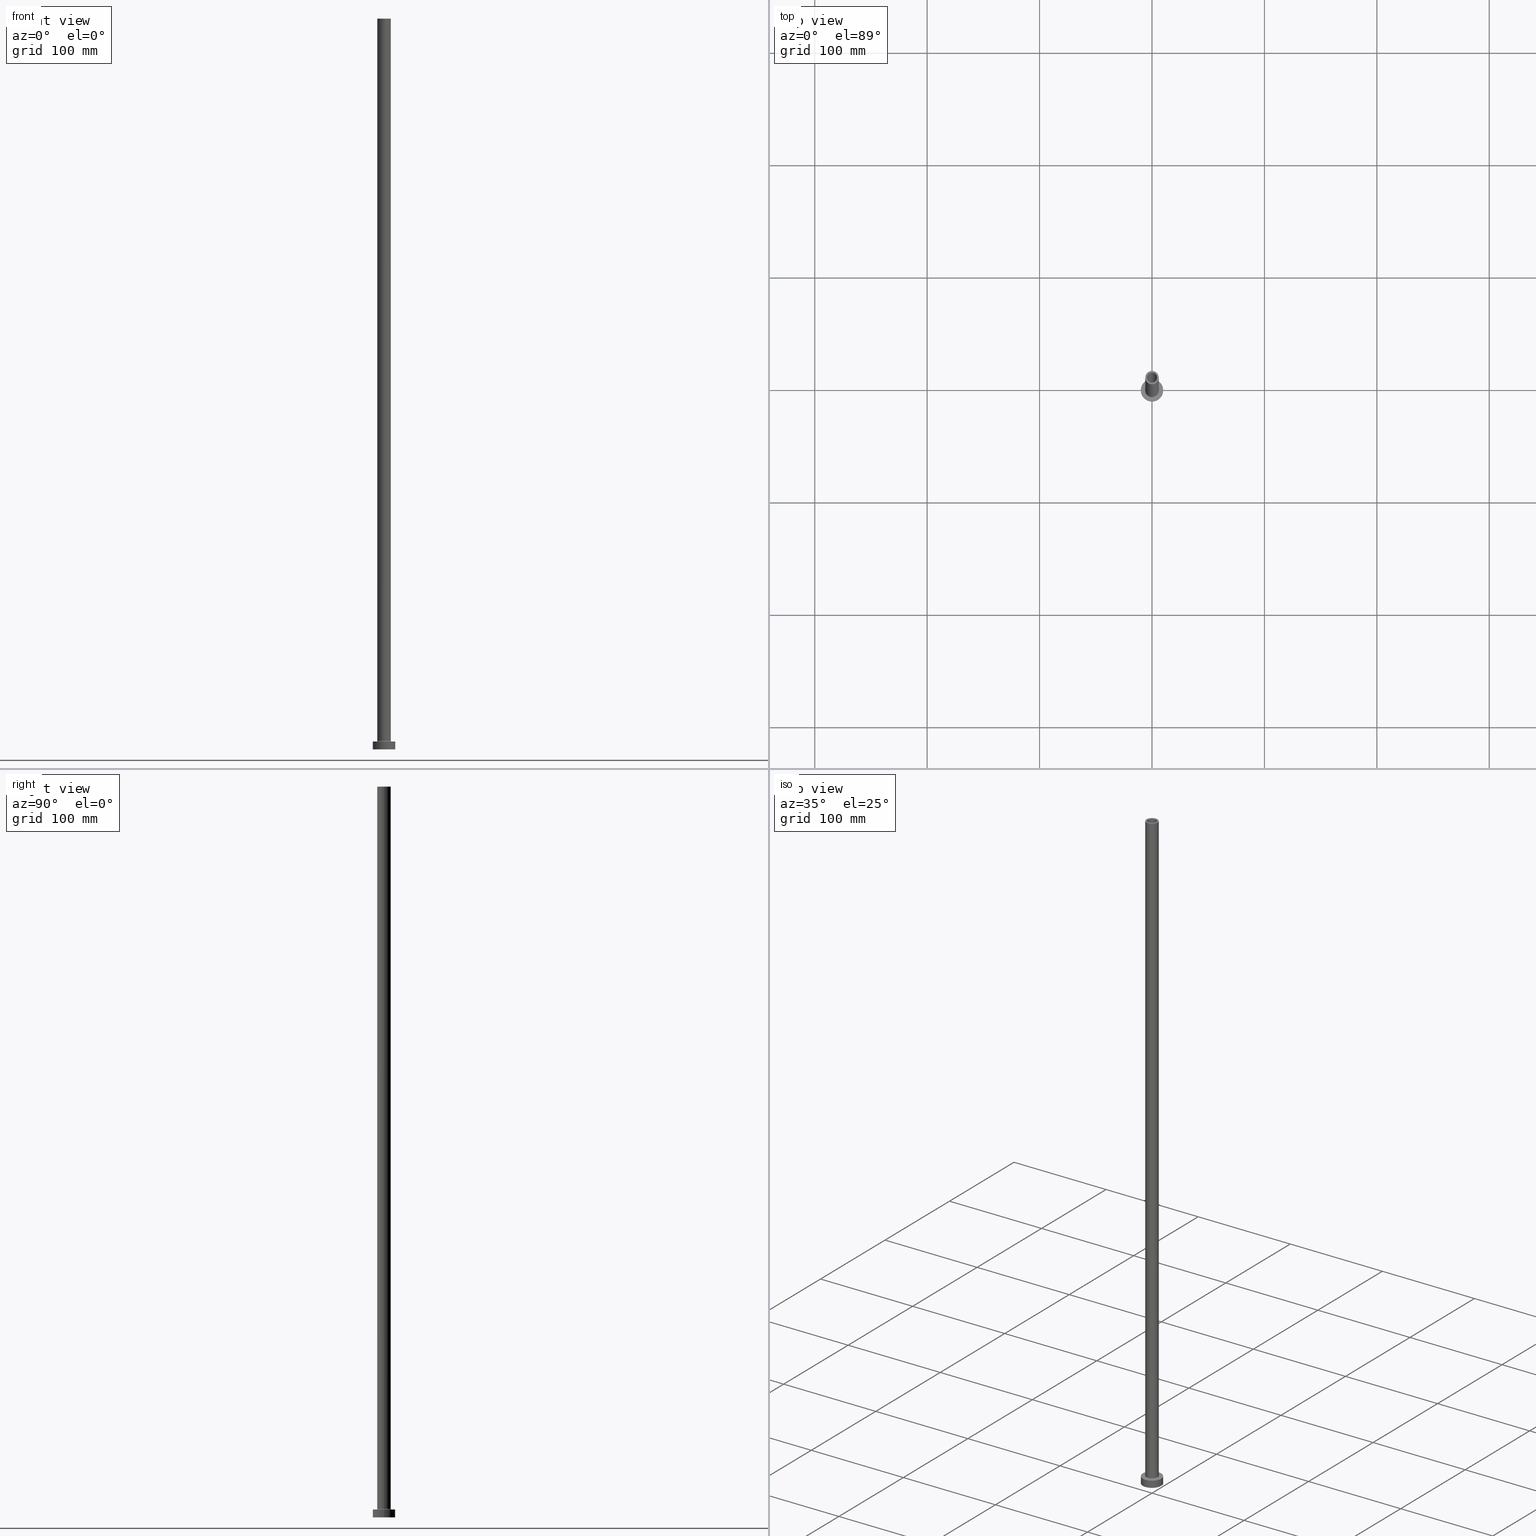
[diagram: canonical four-view strip — front | top / right | iso, engineering-drawing reading convention]
A machine part, canonical four-view strip (front | top / right | iso — engineering-drawing reading convention). The complete STEP part file that produces these views, byte-faithful:
ISO-10303-21;
HEADER;
FILE_DESCRIPTION (( 'STEP AP203' ),
    '1' );
FILE_NAME ('7761.STEP',
    '2023-02-13T11:00:02',
    ( '' ),
    ( '' ),
    'SwSTEP 2.0',
    'SolidWorks 2019',
    '' );
FILE_SCHEMA (( 'CONFIG_CONTROL_DESIGN' ));
ENDSEC;

DATA;
#1 = EDGE_CURVE ( 'NONE', #439, #229, #10, .T. ) ;
#2 = CARTESIAN_POINT ( 'NONE',  ( 0.000000000000000000, 0.000000000000000000, 0.000000000000000000 ) ) ;
#3 = VECTOR ( 'NONE', #260, 1000.000000000000000 ) ;
#4 = CARTESIAN_POINT ( 'NONE',  ( -6.000000000000000888, 0.000000000000000000, 650.0000000000000000 ) ) ;
#5 = CALENDAR_DATE ( 2023, 13, 2 ) ;
#6 = LINE ( 'NONE', #434, #431 ) ;
#7 = ADVANCED_FACE ( 'NONE', ( #275, #403 ), #98, .T. ) ;
#8 = EDGE_LOOP ( 'NONE', ( #139, #45 ) ) ;
#9 = ORIENTED_EDGE ( 'NONE', *, *, #350, .T. ) ;
#10 = CIRCLE ( 'NONE', #322, 4.650000000000000355 ) ;
#11 = DIRECTION ( 'NONE',  ( 0.000000000000000000, 0.000000000000000000, 1.000000000000000000 ) ) ;
#12 = ORIENTED_EDGE ( 'NONE', *, *, #205, .F. ) ;
#13 = ADVANCED_FACE ( 'NONE', ( #41 ), #190, .F. ) ;
#14 = DIRECTION ( 'NONE',  ( 1.000000000000000000, 0.000000000000000000, 0.000000000000000000 ) ) ;
#15 = EDGE_LOOP ( 'NONE', ( #199, #276 ) ) ;
#16 = CARTESIAN_POINT ( 'NONE',  ( -4.500000000000000000, 0.000000000000000000, 650.0000000000000000 ) ) ;
#17 = EDGE_LOOP ( 'NONE', ( #436, #448, #196, #235 ) ) ;
#18 = EDGE_CURVE ( 'NONE', #439, #169, #285, .T. ) ;
#19 = ORIENTED_EDGE ( 'NONE', *, *, #350, .F. ) ;
#20 = ADVANCED_FACE ( 'NONE', ( #57, #316 ), #315, .F. ) ;
#21 = CARTESIAN_POINT ( 'NONE',  ( 0.000000000000000000, 0.000000000000000000, 7.000000000000000000 ) ) ;
#22 = ORIENTED_EDGE ( 'NONE', *, *, #200, .F. ) ;
#23 = AXIS2_PLACEMENT_3D ( 'NONE', #58, #24, #387 ) ;
#24 = DIRECTION ( 'NONE',  ( -0.000000000000000000, -0.000000000000000000, -1.000000000000000000 ) ) ;
#25 = VERTEX_POINT ( 'NONE', #343 ) ;
#26 = DIRECTION ( 'NONE',  ( 1.000000000000000000, 0.000000000000000000, 0.000000000000000000 ) ) ;
#27 = EDGE_LOOP ( 'NONE', ( #22, #67 ) ) ;
#28 = EDGE_CURVE ( 'NONE', #174, #138, #457, .T. ) ;
#29 = CARTESIAN_POINT ( 'NONE',  ( 4.650000000000000355, 5.694607616035192869E-16, 0.000000000000000000 ) ) ;
#30 = VECTOR ( 'NONE', #248, 1000.000000000000000 ) ;
#31 = CC_DESIGN_APPROVAL ( #424, ( #253 ) ) ;
#32 = DIRECTION ( 'NONE',  ( 1.000000000000000000, 0.000000000000000000, 0.000000000000000000 ) ) ;
#33 = COORDINATED_UNIVERSAL_TIME_OFFSET ( 1, 0, .AHEAD. ) ;
#34 = PERSON_AND_ORGANIZATION_ROLE ( 'creator' ) ;
#35 = DIRECTION ( 'NONE',  ( 1.000000000000000000, 0.000000000000000000, 0.000000000000000000 ) ) ;
#36 = CARTESIAN_POINT ( 'NONE',  ( 6.700000000000001066, 0.000000000000000000, 7.000000000000020428 ) ) ;
#37 = APPROVAL_ROLE ( '' ) ;
#38 = DIRECTION ( 'NONE',  ( 0.000000000000000000, 0.000000000000000000, 1.000000000000000000 ) ) ;
#39 = PERSON_AND_ORGANIZATION ( #430, #176 ) ;
#40 = EDGE_CURVE ( 'NONE', #96, #48, #120, .T. ) ;
#41 = FACE_OUTER_BOUND ( 'NONE', #172, .T. ) ;
#42 = CIRCLE ( 'NONE', #246, 4.500000000000000000 ) ;
#43 = DIRECTION ( 'NONE',  ( 0.000000000000000000, 0.000000000000000000, -1.000000000000000000 ) ) ;
#44 = MANIFOLD_SOLID_BREP ( 'Odebrat vysunut�m4', #295 ) ;
#45 = ORIENTED_EDGE ( 'NONE', *, *, #78, .T. ) ;
#46 = DIRECTION ( 'NONE',  ( 1.000000000000000000, 0.000000000000000000, 0.000000000000000000 ) ) ;
#47 = CARTESIAN_POINT ( 'NONE',  ( 0.000000000000000000, 0.000000000000000000, 650.0000000000000000 ) ) ;
#48 = VERTEX_POINT ( 'NONE', #451 ) ;
#49 = EDGE_CURVE ( 'NONE', #229, #439, #313, .T. ) ;
#50 = DIRECTION ( 'NONE',  ( 1.000000000000000000, 0.000000000000000000, -0.000000000000000000 ) ) ;
#51 = VECTOR ( 'NONE', #418, 1000.000000000000000 ) ;
#52 = DIRECTION ( 'NONE',  ( 1.000000000000000000, 0.000000000000000000, 0.000000000000000000 ) ) ;
#53 = DIRECTION ( 'NONE',  ( 1.000000000000000000, 0.000000000000000000, 0.000000000000000000 ) ) ;
#54 = ORIENTED_EDGE ( 'NONE', *, *, #124, .T. ) ;
#55 = DIRECTION ( 'NONE',  ( 0.000000000000000000, 0.000000000000000000, 1.000000000000000000 ) ) ;
#56 = ORIENTED_EDGE ( 'NONE', *, *, #205, .T. ) ;
#57 = FACE_BOUND ( 'NONE', #141, .T. ) ;
#58 = CARTESIAN_POINT ( 'NONE',  ( 0.000000000000000000, 0.000000000000000000, 650.0000000000000000 ) ) ;
#59 = VERTEX_POINT ( 'NONE', #29 ) ;
#60 = ADVANCED_FACE ( 'NONE', ( #317 ), #278, .F. ) ;
#61 = AXIS2_PLACEMENT_3D ( 'NONE', #84, #309, #409 ) ;
#62 = AXIS2_PLACEMENT_3D ( 'NONE', #86, #194, #332 ) ;
#63 = CARTESIAN_POINT ( 'NONE',  ( 4.500000000000000000, 5.510910596163088569E-16, 605.0000000000000000 ) ) ;
#64 = ORIENTED_EDGE ( 'NONE', *, *, #108, .T. ) ;
#65 = ADVANCED_FACE ( 'NONE', ( #381 ), #288, .F. ) ;
#66 = DESIGN_CONTEXT ( 'detailed design', #121, 'design' ) ;
#67 = ORIENTED_EDGE ( 'NONE', *, *, #341, .F. ) ;
#68 = ADVANCED_FACE ( 'NONE', ( #283 ), #212, .T. ) ;
#69 = CARTESIAN_POINT ( 'NONE',  ( 6.000000000000000888, 7.347880794884120722E-16, 650.0000000000000000 ) ) ;
#70 = AXIS2_PLACEMENT_3D ( 'NONE', #266, #125, #46 ) ;
#71 = ADVANCED_FACE ( 'NONE', ( #420 ), #145, .T. ) ;
#72 = APPROVAL_STATUS ( 'not_yet_approved' ) ;
#73 = UNCERTAINTY_MEASURE_WITH_UNIT (LENGTH_MEASURE( 1.000000000000000082E-05 ), #416, 'distance_accuracy_value', 'NONE');
#74 = AXIS2_PLACEMENT_3D ( 'NONE', #228, #363, #281 ) ;
#75 = CARTESIAN_POINT ( 'NONE',  ( 0.000000000000000000, 0.000000000000000000, 605.0000000000000000 ) ) ;
#76 = COORDINATED_UNIVERSAL_TIME_OFFSET ( 1, 0, .AHEAD. ) ;
#77 = CIRCLE ( 'NONE', #192, 6.000000000000000888 ) ;
#78 = EDGE_CURVE ( 'NONE', #48, #232, #455, .T. ) ;
#79 = APPLICATION_PROTOCOL_DEFINITION ( 'international standard', 'config_control_design', 1994, #121 ) ;
#80 = CYLINDRICAL_SURFACE ( 'NONE', #61, 6.000000000000000888 ) ;
#81 = CARTESIAN_POINT ( 'NONE',  ( 6.700000000000001066, 0.000000000000000000, 7.700000000000040146 ) ) ;
#82 = CC_DESIGN_PERSON_AND_ORGANIZATION_ASSIGNMENT ( #39, #152, ( #253 ) ) ;
#83 = EDGE_CURVE ( 'NONE', #333, #388, #258, .T. ) ;
#84 = CARTESIAN_POINT ( 'NONE',  ( 0.000000000000000000, 0.000000000000000000, 650.0000000000000000 ) ) ;
#85 = DIRECTION ( 'NONE',  ( 1.000000000000000000, 0.000000000000000000, -0.000000000000000000 ) ) ;
#86 = CARTESIAN_POINT ( 'NONE',  ( 0.000000000000000000, 0.000000000000000000, 650.0000000000000000 ) ) ;
#87 = VERTEX_POINT ( 'NONE', #109 ) ;
#88 = DIRECTION ( 'NONE',  ( -0.000000000000000000, -0.000000000000000000, -1.000000000000000000 ) ) ;
#89 = APPROVAL_ROLE ( '' ) ;
#90 = AXIS2_PLACEMENT_3D ( 'NONE', #119, #251, #223 ) ;
#91 = CYLINDRICAL_SURFACE ( 'NONE', #175, 4.500000000000000000 ) ;
#92 = LOCAL_TIME ( 12, 0, 2.000000000000000000, #326 ) ;
#93 = ORIENTED_EDGE ( 'NONE', *, *, #28, .T. ) ;
#94 = DIRECTION ( 'NONE',  ( 0.000000000000000000, 0.000000000000000000, 1.000000000000000000 ) ) ;
#95 = CARTESIAN_POINT ( 'NONE',  ( 10.00000000000000000, 1.224646799147353256E-15, 0.000000000000000000 ) ) ;
#96 = VERTEX_POINT ( 'NONE', #384 ) ;
#97 = FACE_OUTER_BOUND ( 'NONE', #15, .T. ) ;
#98 = PLANE ( 'NONE',  #423 ) ;
#99 = ORIENTED_EDGE ( 'NONE', *, *, #391, .T. ) ;
#100 = DIRECTION ( 'NONE',  ( 0.000000000000000000, 0.000000000000000000, -1.000000000000000000 ) ) ;
#101 =( NAMED_UNIT ( * ) SI_UNIT ( $, .STERADIAN. ) SOLID_ANGLE_UNIT ( ) );
#102 = VERTEX_POINT ( 'NONE', #63 ) ;
#103 = CIRCLE ( 'NONE', #286, 10.00000000000000000 ) ;
#104 = CARTESIAN_POINT ( 'NONE',  ( -4.650000000000000355, 0.000000000000000000, 618.1521861300698220 ) ) ;
#105 = MECHANICAL_CONTEXT ( 'NONE', #380, 'mechanical' ) ;
#106 = APPROVAL ( #162, 'NEUR�EN�' ) ;
#107 = DIRECTION ( 'NONE',  ( 1.224646799147353207E-16, 1.000000000000000000, -0.000000000000000000 ) ) ;
#108 = EDGE_CURVE ( 'NONE', #102, #87, #153, .T. ) ;
#109 = CARTESIAN_POINT ( 'NONE',  ( -4.500000000000000000, 0.000000000000000000, 605.0000000000000000 ) ) ;
#110 = EDGE_CURVE ( 'NONE', #232, #48, #181, .T. ) ;
#111 = AXIS2_PLACEMENT_3D ( 'NONE', #201, #307, #14 ) ;
#112 = EDGE_LOOP ( 'NONE', ( #306, #408, #56, #195 ) ) ;
#113 = LINE ( 'NONE', #294, #30 ) ;
#114 = CC_DESIGN_PERSON_AND_ORGANIZATION_ASSIGNMENT ( #345, #213, ( #447 ) ) ;
#115 = AXIS2_PLACEMENT_3D ( 'NONE', #375, #284, #216 ) ;
#116 = CC_DESIGN_DATE_AND_TIME_ASSIGNMENT ( #437, #207, ( #253 ) ) ;
#117 = CARTESIAN_POINT ( 'NONE',  ( 0.000000000000000000, 0.000000000000000000, 7.000000000000000000 ) ) ;
#118 = PERSON_AND_ORGANIZATION ( #430, #176 ) ;
#119 = CARTESIAN_POINT ( 'NONE',  ( 0.000000000000000000, 0.000000000000000000, 0.000000000000000000 ) ) ;
#120 = CIRCLE ( 'NONE', #402, 0.7000000000000000666 ) ;
#121 = APPLICATION_CONTEXT ( 'configuration controlled 3d designs of mechanical parts and assemblies' ) ;
#122 = PERSON_AND_ORGANIZATION_ROLE ( 'creator' ) ;
#123 = DIRECTION ( 'NONE',  ( 1.000000000000000000, 0.000000000000000000, 0.000000000000000000 ) ) ;
#124 = EDGE_CURVE ( 'NONE', #229, #59, #113, .T. ) ;
#125 = DIRECTION ( 'NONE',  ( 0.000000000000000000, 0.000000000000000000, 1.000000000000000000 ) ) ;
#126 = CIRCLE ( 'NONE', #329, 0.7000000000000000666 ) ;
#127 = CARTESIAN_POINT ( 'NONE',  ( 0.000000000000000000, 0.000000000000000000, 7.700000000000040146 ) ) ;
#128 = FACE_OUTER_BOUND ( 'NONE', #134, .T. ) ;
#129 = ORIENTED_EDGE ( 'NONE', *, *, #328, .F. ) ;
#130 = ORIENTED_EDGE ( 'NONE', *, *, #411, .F. ) ;
#131 = CIRCLE ( 'NONE', #222, 4.500000000000000000 ) ;
#132 = DIRECTION ( 'NONE',  ( 0.000000000000000000, 0.000000000000000000, -1.000000000000000000 ) ) ;
#133 = AXIS2_PLACEMENT_3D ( 'NONE', #272, #137, #370 ) ;
#134 = EDGE_LOOP ( 'NONE', ( #264, #346, #268, #241 ) ) ;
#135 = CALENDAR_DATE ( 2023, 13, 2 ) ;
#136 = DIRECTION ( 'NONE',  ( 1.000000000000000000, 0.000000000000000000, 0.000000000000000000 ) ) ;
#137 = DIRECTION ( 'NONE',  ( 0.000000000000000000, 0.000000000000000000, -1.000000000000000000 ) ) ;
#138 = VERTEX_POINT ( 'NONE', #219 ) ;
#139 = ORIENTED_EDGE ( 'NONE', *, *, #110, .T. ) ;
#140 = DATE_TIME_ROLE ( 'creation_date' ) ;
#141 = EDGE_LOOP ( 'NONE', ( #386, #64 ) ) ;
#142 = AXIS2_PLACEMENT_3D ( 'NONE', #289, #182, #293 ) ;
#143 = DIRECTION ( 'NONE',  ( -1.000000000000000000, 0.000000000000000000, 0.000000000000000000 ) ) ;
#144 = DIRECTION ( 'NONE',  ( 0.000000000000000000, 0.000000000000000000, 1.000000000000000000 ) ) ;
#145 = CYLINDRICAL_SURFACE ( 'NONE', #23, 6.000000000000000888 ) ;
#146 =( NAMED_UNIT ( * ) PLANE_ANGLE_UNIT ( ) SI_UNIT ( $, .RADIAN. ) );
#147 = DIRECTION ( 'NONE',  ( 0.000000000000000000, 0.000000000000000000, -1.000000000000000000 ) ) ;
#148 = CIRCLE ( 'NONE', #70, 6.000000000000000888 ) ;
#149 = LOCAL_TIME ( 12, 0, 2.000000000000000000, #76 ) ;
#150 = LOCAL_TIME ( 12, 0, 2.000000000000000000, #271 ) ;
#151 = DIRECTION ( 'NONE',  ( 0.000000000000000000, 0.000000000000000000, 1.000000000000000000 ) ) ;
#152 = PERSON_AND_ORGANIZATION_ROLE ( 'classification_officer' ) ;
#153 = CIRCLE ( 'NONE', #269, 4.500000000000000000 ) ;
#154 = EDGE_CURVE ( 'NONE', #445, #444, #103, .T. ) ;
#155 = DIRECTION ( 'NONE',  ( -0.000000000000000000, -0.000000000000000000, -1.000000000000000000 ) ) ;
#156 = CARTESIAN_POINT ( 'NONE',  ( 0.000000000000000000, 0.000000000000000000, 7.700000000000040146 ) ) ;
#157 = CARTESIAN_POINT ( 'NONE',  ( 0.000000000000000000, 0.000000000000000000, 650.0000000000000000 ) ) ;
#158 = AXIS2_PLACEMENT_3D ( 'NONE', #399, #274, #53 ) ;
#159 = FACE_OUTER_BOUND ( 'NONE', #282, .T. ) ;
#160 = ORIENTED_EDGE ( 'NONE', *, *, #78, .F. ) ;
#161 = ADVANCED_FACE ( 'NONE', ( #425, #427 ), #321, .F. ) ;
#162 = APPROVAL_STATUS ( 'not_yet_approved' ) ;
#163 = ORIENTED_EDGE ( 'NONE', *, *, #28, .F. ) ;
#164 = ORIENTED_EDGE ( 'NONE', *, *, #189, .F. ) ;
#165 = LINE ( 'NONE', #405, #238 ) ;
#166 = APPROVAL_DATE_TIME ( #335, #424 ) ;
#167 = DIRECTION ( 'NONE',  ( 0.000000000000000000, 0.000000000000000000, 1.000000000000000000 ) ) ;
#168 = EDGE_LOOP ( 'NONE', ( #320, #93, #9, #129 ) ) ;
#169 = VERTEX_POINT ( 'NONE', #186 ) ;
#170 = ORIENTED_EDGE ( 'NONE', *, *, #458, .T. ) ;
#171 = ADVANCED_BREP_SHAPE_REPRESENTATION ( '7761', ( #44, #259 ), #356 ) ;
#172 = EDGE_LOOP ( 'NONE', ( #331, #170, #209, #237 ) ) ;
#173 = DIRECTION ( 'NONE',  ( 0.000000000000000000, 0.000000000000000000, 1.000000000000000000 ) ) ;
#174 = VERTEX_POINT ( 'NONE', #69 ) ;
#175 = AXIS2_PLACEMENT_3D ( 'NONE', #47, #407, #224 ) ;
#176 = ORGANIZATION ( 'NEUR�EN�', 'NEUR�EN�', '' ) ;
#177 = CARTESIAN_POINT ( 'NONE',  ( 0.000000000000000000, 0.000000000000000000, 7.000000000000000000 ) ) ;
#178 = DIRECTION ( 'NONE',  ( -0.000000000000000000, -0.000000000000000000, -1.000000000000000000 ) ) ;
#179 = DIRECTION ( 'NONE',  ( -0.000000000000000000, -0.000000000000000000, -1.000000000000000000 ) ) ;
#180 = EDGE_LOOP ( 'NONE', ( #163, #130, #310, #441 ) ) ;
#181 = CIRCLE ( 'NONE', #351, 6.700000000000001066 ) ;
#182 = DIRECTION ( 'NONE',  ( 0.000000000000000000, 0.000000000000000000, 1.000000000000000000 ) ) ;
#183 = LINE ( 'NONE', #324, #383 ) ;
#184 = EDGE_CURVE ( 'NONE', #444, #445, #365, .T. ) ;
#185 = APPROVAL_PERSON_ORGANIZATION ( #262, #106, #37 ) ;
#186 = CARTESIAN_POINT ( 'NONE',  ( -4.650000000000000355, 0.000000000000000000, 0.000000000000000000 ) ) ;
#187 = APPROVAL ( #72, 'NEUR�EN�' ) ;
#188 = CYLINDRICAL_SURFACE ( 'NONE', #393, 10.00000000000000000 ) ;
#189 = EDGE_CURVE ( 'NONE', #87, #102, #42, .T. ) ;
#190 = CYLINDRICAL_SURFACE ( 'NONE', #74, 4.500000000000000000 ) ;
#191 = CARTESIAN_POINT ( 'NONE',  ( -4.500000000000000000, 0.000000000000000000, 650.0000000000000000 ) ) ;
#192 = AXIS2_PLACEMENT_3D ( 'NONE', #156, #429, #123 ) ;
#193 = CC_DESIGN_SECURITY_CLASSIFICATION ( #253, ( #208 ) ) ;
#194 = DIRECTION ( 'NONE',  ( 0.000000000000000000, 0.000000000000000000, 1.000000000000000000 ) ) ;
#195 = ORIENTED_EDGE ( 'NONE', *, *, #267, .F. ) ;
#196 = ORIENTED_EDGE ( 'NONE', *, *, #18, .T. ) ;
#197 = CALENDAR_DATE ( 2023, 13, 2 ) ;
#198 = FACE_OUTER_BOUND ( 'NONE', #301, .T. ) ;
#199 = ORIENTED_EDGE ( 'NONE', *, *, #154, .T. ) ;
#200 = EDGE_CURVE ( 'NONE', #169, #59, #406, .T. ) ;
#201 = CARTESIAN_POINT ( 'NONE',  ( 0.000000000000000000, 0.000000000000000000, 0.000000000000000000 ) ) ;
#202 = ORIENTED_EDGE ( 'NONE', *, *, #422, .T. ) ;
#203 = CARTESIAN_POINT ( 'NONE',  ( 10.00000000000000000, 1.224646799147353256E-15, 7.000000000000000000 ) ) ;
#204 = ORIENTED_EDGE ( 'NONE', *, *, #83, .F. ) ;
#205 = EDGE_CURVE ( 'NONE', #388, #333, #338, .T. ) ;
#206 = FACE_OUTER_BOUND ( 'NONE', #168, .T. ) ;
#207 = DATE_TIME_ROLE ( 'classification_date' ) ;
#208 = PRODUCT_DEFINITION_FORMATION_WITH_SPECIFIED_SOURCE ( 'LIBOVOLN�', '', #447, .NOT_KNOWN. ) ;
#209 = ORIENTED_EDGE ( 'NONE', *, *, #449, .T. ) ;
#210 = CARTESIAN_POINT ( 'NONE',  ( 0.000000000000000000, 0.000000000000000000, 7.700000000000040146 ) ) ;
#211 = CARTESIAN_POINT ( 'NONE',  ( 0.000000000000000000, 0.000000000000000000, 605.0000000000000000 ) ) ;
#212 = CYLINDRICAL_SURFACE ( 'NONE', #435, 10.00000000000000000 ) ;
#213 = PERSON_AND_ORGANIZATION_ROLE ( 'design_owner' ) ;
#214 = CC_DESIGN_PERSON_AND_ORGANIZATION_ASSIGNMENT ( #118, #34, ( #433 ) ) ;
#215 = CARTESIAN_POINT ( 'NONE',  ( 0.000000000000000000, 0.000000000000000000, 605.0000000000000000 ) ) ;
#216 = DIRECTION ( 'NONE',  ( 1.000000000000000000, 0.000000000000000000, 0.000000000000000000 ) ) ;
#217 = APPROVAL_DATE_TIME ( #323, #187 ) ;
#218 = DIRECTION ( 'NONE',  ( 1.000000000000000000, 0.000000000000000000, 0.000000000000000000 ) ) ;
#219 = CARTESIAN_POINT ( 'NONE',  ( 6.000000000000000888, 7.347880794884120722E-16, 7.700000000000040146 ) ) ;
#220 = CALENDAR_DATE ( 2023, 13, 2 ) ;
#221 = CALENDAR_DATE ( 2023, 13, 2 ) ;
#222 = AXIS2_PLACEMENT_3D ( 'NONE', #157, #167, #300 ) ;
#223 = DIRECTION ( 'NONE',  ( 1.000000000000000000, 0.000000000000000000, -0.000000000000000000 ) ) ;
#224 = DIRECTION ( 'NONE',  ( -1.000000000000000000, 0.000000000000000000, 0.000000000000000000 ) ) ;
#225 = PERSON_AND_ORGANIZATION ( #430, #176 ) ;
#226 = DIRECTION ( 'NONE',  ( -1.000000000000000000, 0.000000000000000000, 0.000000000000000000 ) ) ;
#227 = EDGE_CURVE ( 'NONE', #25, #102, #183, .T. ) ;
#228 = CARTESIAN_POINT ( 'NONE',  ( 0.000000000000000000, 0.000000000000000000, 650.0000000000000000 ) ) ;
#229 = VERTEX_POINT ( 'NONE', #355 ) ;
#230 = AXIS2_PLACEMENT_3D ( 'NONE', #177, #178, #244 ) ;
#231 = APPROVAL_PERSON_ORGANIZATION ( #236, #424, #89 ) ;
#232 = VERTEX_POINT ( 'NONE', #36 ) ;
#233 = CARTESIAN_POINT ( 'NONE',  ( 10.00000000000000000, 1.224646799147353256E-15, 7.000000000000000000 ) ) ;
#234 = DIRECTION ( 'NONE',  ( -0.000000000000000000, -0.000000000000000000, -1.000000000000000000 ) ) ;
#235 = ORIENTED_EDGE ( 'NONE', *, *, #200, .T. ) ;
#236 = PERSON_AND_ORGANIZATION ( #430, #176 ) ;
#237 = ORIENTED_EDGE ( 'NONE', *, *, #108, .F. ) ;
#238 = VECTOR ( 'NONE', #88, 1000.000000000000000 ) ;
#239 = DIRECTION ( 'NONE',  ( -1.000000000000000000, 1.224646799147353454E-16, 0.000000000000000000 ) ) ;
#240 = APPROVAL_STATUS ( 'not_yet_approved' ) ;
#241 = ORIENTED_EDGE ( 'NONE', *, *, #83, .T. ) ;
#242 = PRODUCT_DEFINITION_SHAPE ( 'NONE', 'NONE',  #433 ) ;
#243 = ORIENTED_EDGE ( 'NONE', *, *, #40, .F. ) ;
#244 = DIRECTION ( 'NONE',  ( 1.000000000000000000, 0.000000000000000000, 0.000000000000000000 ) ) ;
#245 = VERTEX_POINT ( 'NONE', #4 ) ;
#246 = AXIS2_PLACEMENT_3D ( 'NONE', #75, #151, #32 ) ;
#247 = ORIENTED_EDGE ( 'NONE', *, *, #302, .T. ) ;
#248 = DIRECTION ( 'NONE',  ( 0.000000000000000000, 0.000000000000000000, -1.000000000000000000 ) ) ;
#249 = CC_DESIGN_PERSON_AND_ORGANIZATION_ASSIGNMENT ( #225, #122, ( #208 ) ) ;
#250 = EDGE_CURVE ( 'NONE', #96, #138, #77, .T. ) ;
#251 = DIRECTION ( 'NONE',  ( 0.000000000000000000, 0.000000000000000000, 1.000000000000000000 ) ) ;
#252 = TOROIDAL_SURFACE ( 'NONE', #397, 6.700000000000001066, 0.6999999999999999556 ) ;
#253 = SECURITY_CLASSIFICATION ( '', '', #360 ) ;
#254 = DIRECTION ( 'NONE',  ( 1.000000000000000000, 0.000000000000000000, 0.000000000000000000 ) ) ;
#255 = ADVANCED_FACE ( 'NONE', ( #401, #97 ), #303, .T. ) ;
#256 = PERSON_AND_ORGANIZATION_ROLE ( 'design_supplier' ) ;
#257 = DIRECTION ( 'NONE',  ( 0.000000000000000000, 0.000000000000000000, -1.000000000000000000 ) ) ;
#258 = CIRCLE ( 'NONE', #115, 10.00000000000000000 ) ;
#259 = AXIS2_PLACEMENT_3D ( 'NONE', #452, #144, #218 ) ;
#260 = DIRECTION ( 'NONE',  ( -0.000000000000000000, -0.000000000000000000, -1.000000000000000000 ) ) ;
#261 = APPROVAL_ROLE ( '' ) ;
#262 = PERSON_AND_ORGANIZATION ( #430, #176 ) ;
#263 = FACE_OUTER_BOUND ( 'NONE', #17, .T. ) ;
#264 = ORIENTED_EDGE ( 'NONE', *, *, #334, .F. ) ;
#265 = AXIS2_PLACEMENT_3D ( 'NONE', #210, #173, #348 ) ;
#266 = CARTESIAN_POINT ( 'NONE',  ( 0.000000000000000000, 0.000000000000000000, 650.0000000000000000 ) ) ;
#267 = EDGE_CURVE ( 'NONE', #445, #333, #6, .T. ) ;
#268 = ORIENTED_EDGE ( 'NONE', *, *, #267, .T. ) ;
#269 = AXIS2_PLACEMENT_3D ( 'NONE', #215, #349, #354 ) ;
#270 = ORIENTED_EDGE ( 'NONE', *, *, #49, .F. ) ;
#271 = COORDINATED_UNIVERSAL_TIME_OFFSET ( 1, 0, .AHEAD. ) ;
#272 = CARTESIAN_POINT ( 'NONE',  ( 0.000000000000000000, 0.000000000000000000, 618.1521861300698220 ) ) ;
#273 = EDGE_LOOP ( 'NONE', ( #404, #247 ) ) ;
#274 = DIRECTION ( 'NONE',  ( 0.000000000000000000, 0.000000000000000000, 1.000000000000000000 ) ) ;
#275 = FACE_BOUND ( 'NONE', #454, .T. ) ;
#276 = ORIENTED_EDGE ( 'NONE', *, *, #184, .T. ) ;
#277 = DATE_AND_TIME ( #135, #398 ) ;
#278 = CYLINDRICAL_SURFACE ( 'NONE', #342, 4.650000000000000355 ) ;
#279 = ORIENTED_EDGE ( 'NONE', *, *, #449, .F. ) ;
#280 = AXIS2_PLACEMENT_3D ( 'NONE', #117, #460, #254 ) ;
#281 = DIRECTION ( 'NONE',  ( -1.000000000000000000, 0.000000000000000000, 0.000000000000000000 ) ) ;
#282 = EDGE_LOOP ( 'NONE', ( #459, #410, #371, #372 ) ) ;
#283 = FACE_OUTER_BOUND ( 'NONE', #112, .T. ) ;
#284 = DIRECTION ( 'NONE',  ( 0.000000000000000000, 0.000000000000000000, 1.000000000000000000 ) ) ;
#285 = LINE ( 'NONE', #104, #389 ) ;
#286 = AXIS2_PLACEMENT_3D ( 'NONE', #390, #461, #325 ) ;
#287 = VECTOR ( 'NONE', #43, 1000.000000000000000 ) ;
#288 = TOROIDAL_SURFACE ( 'NONE', #265, 6.700000000000001066, 0.6999999999999999556 ) ;
#289 = CARTESIAN_POINT ( 'NONE',  ( 0.000000000000000000, 0.000000000000000000, 0.000000000000000000 ) ) ;
#290 = CARTESIAN_POINT ( 'NONE',  ( 0.000000000000000000, 0.000000000000000000, 7.000000000000000000 ) ) ;
#291 = AXIS2_PLACEMENT_3D ( 'NONE', #2, #358, #35 ) ;
#292 = COORDINATED_UNIVERSAL_TIME_OFFSET ( 1, 0, .AHEAD. ) ;
#293 = DIRECTION ( 'NONE',  ( 1.000000000000000000, 0.000000000000000000, 0.000000000000000000 ) ) ;
#294 = CARTESIAN_POINT ( 'NONE',  ( 4.650000000000000355, 5.694607616035192869E-16, 618.1521861300698220 ) ) ;
#295 = CLOSED_SHELL ( 'NONE', ( #374, #60, #417, #357, #68, #415, #255, #161, #71, #7, #65, #428, #20, #13 ) ) ;
#296 = DATE_AND_TIME ( #221, #149 ) ;
#297 = DIRECTION ( 'NONE',  ( -0.000000000000000000, -0.000000000000000000, -1.000000000000000000 ) ) ;
#298 = CARTESIAN_POINT ( 'NONE',  ( -4.650000000000000355, 0.000000000000000000, 605.0000000000000000 ) ) ;
#299 = CIRCLE ( 'NONE', #414, 6.000000000000000888 ) ;
#300 = DIRECTION ( 'NONE',  ( 1.000000000000000000, 0.000000000000000000, 0.000000000000000000 ) ) ;
#301 = EDGE_LOOP ( 'NONE', ( #202, #367, #164, #279 ) ) ;
#302 = EDGE_CURVE ( 'NONE', #174, #245, #148, .T. ) ;
#303 = PLANE ( 'NONE',  #419 ) ;
#304 = ORIENTED_EDGE ( 'NONE', *, *, #1, .T. ) ;
#305 = CYLINDRICAL_SURFACE ( 'NONE', #133, 4.650000000000000355 ) ;
#306 = ORIENTED_EDGE ( 'NONE', *, *, #184, .F. ) ;
#307 = DIRECTION ( 'NONE',  ( -0.000000000000000000, -0.000000000000000000, -1.000000000000000000 ) ) ;
#308 = CARTESIAN_POINT ( 'NONE',  ( 0.000000000000000000, 0.000000000000000000, 605.0000000000000000 ) ) ;
#309 = DIRECTION ( 'NONE',  ( -0.000000000000000000, -0.000000000000000000, -1.000000000000000000 ) ) ;
#310 = ORIENTED_EDGE ( 'NONE', *, *, #328, .T. ) ;
#311 = ORIENTED_EDGE ( 'NONE', *, *, #341, .T. ) ;
#312 = EDGE_LOOP ( 'NONE', ( #382, #270 ) ) ;
#313 = CIRCLE ( 'NONE', #369, 4.650000000000000355 ) ;
#314 = DIRECTION ( 'NONE',  ( -1.000000000000000000, 0.000000000000000000, 0.000000000000000000 ) ) ;
#315 = PLANE ( 'NONE',  #394 ) ;
#316 = FACE_OUTER_BOUND ( 'NONE', #312, .T. ) ;
#317 = FACE_OUTER_BOUND ( 'NONE', #337, .T. ) ;
#318 = CC_DESIGN_PERSON_AND_ORGANIZATION_ASSIGNMENT ( #426, #256, ( #208 ) ) ;
#319 = CARTESIAN_POINT ( 'NONE',  ( 6.000000000000000888, 7.347880794884120722E-16, 650.0000000000000000 ) ) ;
#320 = ORIENTED_EDGE ( 'NONE', *, *, #302, .F. ) ;
#321 = PLANE ( 'NONE',  #90 ) ;
#322 = AXIS2_PLACEMENT_3D ( 'NONE', #308, #442, #136 ) ;
#323 = DATE_AND_TIME ( #5, #92 ) ;
#324 = CARTESIAN_POINT ( 'NONE',  ( 4.500000000000000000, 5.510910596163088569E-16, 650.0000000000000000 ) ) ;
#325 = DIRECTION ( 'NONE',  ( 1.000000000000000000, 0.000000000000000000, 0.000000000000000000 ) ) ;
#326 = COORDINATED_UNIVERSAL_TIME_OFFSET ( 1, 0, .AHEAD. ) ;
#327 = EDGE_LOOP ( 'NONE', ( #204, #12 ) ) ;
#328 = EDGE_CURVE ( 'NONE', #245, #96, #165, .T. ) ;
#329 = AXIS2_PLACEMENT_3D ( 'NONE', #81, #359, #132 ) ;
#330 = LOCAL_TIME ( 12, 0, 2.000000000000000000, #33 ) ;
#331 = ORIENTED_EDGE ( 'NONE', *, *, #227, .F. ) ;
#332 = DIRECTION ( 'NONE',  ( 1.000000000000000000, 0.000000000000000000, 0.000000000000000000 ) ) ;
#333 = VERTEX_POINT ( 'NONE', #366 ) ;
#334 = EDGE_CURVE ( 'NONE', #444, #388, #438, .T. ) ;
#335 = DATE_AND_TIME ( #197, #150 ) ;
#336 = CARTESIAN_POINT ( 'NONE',  ( -10.00000000000000000, 0.000000000000000000, 7.000000000000000000 ) ) ;
#337 = EDGE_LOOP ( 'NONE', ( #304, #54, #311, #421 ) ) ;
#338 = CIRCLE ( 'NONE', #142, 10.00000000000000000 ) ;
#339 = CC_DESIGN_APPROVAL ( #106, ( #433 ) ) ;
#340 = EDGE_LOOP ( 'NONE', ( #243, #19, #99, #160 ) ) ;
#341 = EDGE_CURVE ( 'NONE', #59, #169, #373, .T. ) ;
#342 = AXIS2_PLACEMENT_3D ( 'NONE', #412, #100, #314 ) ;
#343 = CARTESIAN_POINT ( 'NONE',  ( 4.500000000000000000, 5.510910596163088569E-16, 650.0000000000000000 ) ) ;
#344 = PRODUCT_RELATED_PRODUCT_CATEGORY ( 'detail', '', ( #447 ) ) ;
#345 = PERSON_AND_ORGANIZATION ( #430, #176 ) ;
#346 = ORIENTED_EDGE ( 'NONE', *, *, #154, .F. ) ;
#347 = CARTESIAN_POINT ( 'NONE',  ( 0.000000000000000000, 0.000000000000000000, 605.0000000000000000 ) ) ;
#348 = DIRECTION ( 'NONE',  ( 1.000000000000000000, 0.000000000000000000, 0.000000000000000000 ) ) ;
#349 = DIRECTION ( 'NONE',  ( 0.000000000000000000, 0.000000000000000000, 1.000000000000000000 ) ) ;
#350 = EDGE_CURVE ( 'NONE', #138, #96, #450, .T. ) ;
#351 = AXIS2_PLACEMENT_3D ( 'NONE', #290, #155, #396 ) ;
#352 = CC_DESIGN_APPROVAL ( #187, ( #208 ) ) ;
#353 = CC_DESIGN_DATE_AND_TIME_ASSIGNMENT ( #277, #140, ( #433 ) ) ;
#354 = DIRECTION ( 'NONE',  ( 1.000000000000000000, 0.000000000000000000, 0.000000000000000000 ) ) ;
#355 = CARTESIAN_POINT ( 'NONE',  ( 4.650000000000000355, 5.694607616035192869E-16, 605.0000000000000000 ) ) ;
#356 =( GEOMETRIC_REPRESENTATION_CONTEXT ( 3 ) GLOBAL_UNCERTAINTY_ASSIGNED_CONTEXT ( ( #73 ) ) GLOBAL_UNIT_ASSIGNED_CONTEXT ( ( #416, #146, #101 ) ) REPRESENTATION_CONTEXT ( 'NONE', 'WORKASPACE' ) );
#357 = ADVANCED_FACE ( 'NONE', ( #206 ), #80, .T. ) ;
#358 = DIRECTION ( 'NONE',  ( -0.000000000000000000, -0.000000000000000000, -1.000000000000000000 ) ) ;
#359 = DIRECTION ( 'NONE',  ( 0.000000000000000000, -1.000000000000000000, 0.000000000000000000 ) ) ;
#360 = SECURITY_CLASSIFICATION_LEVEL ( 'unclassified' ) ;
#361 = DIRECTION ( 'NONE',  ( 0.000000000000000000, 0.000000000000000000, 1.000000000000000000 ) ) ;
#362 = CARTESIAN_POINT ( 'NONE',  ( 0.000000000000000000, 0.000000000000000000, 7.000000000000000000 ) ) ;
#363 = DIRECTION ( 'NONE',  ( 0.000000000000000000, 0.000000000000000000, -1.000000000000000000 ) ) ;
#364 = ORIENTED_EDGE ( 'NONE', *, *, #458, .F. ) ;
#365 = CIRCLE ( 'NONE', #280, 10.00000000000000000 ) ;
#366 = CARTESIAN_POINT ( 'NONE',  ( -10.00000000000000000, 0.000000000000000000, 0.000000000000000000 ) ) ;
#367 = ORIENTED_EDGE ( 'NONE', *, *, #227, .T. ) ;
#368 = CARTESIAN_POINT ( 'NONE',  ( 0.000000000000000000, 0.000000000000000000, 7.000000000000000000 ) ) ;
#369 = AXIS2_PLACEMENT_3D ( 'NONE', #211, #446, #26 ) ;
#370 = DIRECTION ( 'NONE',  ( -1.000000000000000000, 0.000000000000000000, 0.000000000000000000 ) ) ;
#371 = ORIENTED_EDGE ( 'NONE', *, *, #110, .F. ) ;
#372 = ORIENTED_EDGE ( 'NONE', *, *, #391, .F. ) ;
#373 = CIRCLE ( 'NONE', #111, 4.650000000000000355 ) ;
#374 = ADVANCED_FACE ( 'NONE', ( #198 ), #91, .F. ) ;
#375 = CARTESIAN_POINT ( 'NONE',  ( 0.000000000000000000, 0.000000000000000000, 0.000000000000000000 ) ) ;
#376 = SHAPE_DEFINITION_REPRESENTATION ( #242, #171 ) ;
#377 = ORIENTED_EDGE ( 'NONE', *, *, #422, .F. ) ;
#378 = PERSON_AND_ORGANIZATION ( #430, #176 ) ;
#379 = DIRECTION ( 'NONE',  ( 1.000000000000000000, 0.000000000000000000, -0.000000000000000000 ) ) ;
#380 = APPLICATION_CONTEXT ( 'configuration controlled 3d designs of mechanical parts and assemblies' ) ;
#381 = FACE_OUTER_BOUND ( 'NONE', #340, .T. ) ;
#382 = ORIENTED_EDGE ( 'NONE', *, *, #1, .F. ) ;
#383 = VECTOR ( 'NONE', #257, 1000.000000000000000 ) ;
#384 = CARTESIAN_POINT ( 'NONE',  ( -6.000000000000000888, 0.000000000000000000, 7.700000000000040146 ) ) ;
#385 = APPROVAL_PERSON_ORGANIZATION ( #378, #187, #261 ) ;
#386 = ORIENTED_EDGE ( 'NONE', *, *, #189, .T. ) ;
#387 = DIRECTION ( 'NONE',  ( -1.000000000000000000, 0.000000000000000000, 0.000000000000000000 ) ) ;
#388 = VERTEX_POINT ( 'NONE', #95 ) ;
#389 = VECTOR ( 'NONE', #147, 1000.000000000000000 ) ;
#390 = CARTESIAN_POINT ( 'NONE',  ( 0.000000000000000000, 0.000000000000000000, 7.000000000000000000 ) ) ;
#391 = EDGE_CURVE ( 'NONE', #138, #232, #126, .T. ) ;
#392 = APPLICATION_PROTOCOL_DEFINITION ( 'international standard', 'config_control_design', 1994, #380 ) ;
#393 = AXIS2_PLACEMENT_3D ( 'NONE', #362, #234, #226 ) ;
#394 = AXIS2_PLACEMENT_3D ( 'NONE', #347, #55, #379 ) ;
#395 = APPROVAL_DATE_TIME ( #296, #106 ) ;
#396 = DIRECTION ( 'NONE',  ( 1.000000000000000000, 0.000000000000000000, 0.000000000000000000 ) ) ;
#397 = AXIS2_PLACEMENT_3D ( 'NONE', #127, #11, #52 ) ;
#398 = LOCAL_TIME ( 12, 0, 2.000000000000000000, #292 ) ;
#399 = CARTESIAN_POINT ( 'NONE',  ( 0.000000000000000000, 0.000000000000000000, 7.700000000000040146 ) ) ;
#400 = CARTESIAN_POINT ( 'NONE',  ( 0.000000000000000000, 0.000000000000000000, 650.0000000000000000 ) ) ;
#401 = FACE_BOUND ( 'NONE', #8, .T. ) ;
#402 = AXIS2_PLACEMENT_3D ( 'NONE', #453, #107, #239 ) ;
#403 = FACE_OUTER_BOUND ( 'NONE', #273, .T. ) ;
#404 = ORIENTED_EDGE ( 'NONE', *, *, #411, .T. ) ;
#405 = CARTESIAN_POINT ( 'NONE',  ( -6.000000000000000888, 0.000000000000000000, 650.0000000000000000 ) ) ;
#406 = CIRCLE ( 'NONE', #291, 4.650000000000000355 ) ;
#407 = DIRECTION ( 'NONE',  ( 0.000000000000000000, 0.000000000000000000, -1.000000000000000000 ) ) ;
#408 = ORIENTED_EDGE ( 'NONE', *, *, #334, .T. ) ;
#409 = DIRECTION ( 'NONE',  ( -1.000000000000000000, 0.000000000000000000, 0.000000000000000000 ) ) ;
#410 = ORIENTED_EDGE ( 'NONE', *, *, #40, .T. ) ;
#411 = EDGE_CURVE ( 'NONE', #245, #174, #299, .T. ) ;
#412 = CARTESIAN_POINT ( 'NONE',  ( 0.000000000000000000, 0.000000000000000000, 618.1521861300698220 ) ) ;
#413 = VERTEX_POINT ( 'NONE', #191 ) ;
#414 = AXIS2_PLACEMENT_3D ( 'NONE', #443, #38, #440 ) ;
#415 = ADVANCED_FACE ( 'NONE', ( #128 ), #188, .T. ) ;
#416 =( LENGTH_UNIT ( ) NAMED_UNIT ( * ) SI_UNIT ( .MILLI., .METRE. ) );
#417 = ADVANCED_FACE ( 'NONE', ( #159 ), #252, .F. ) ;
#418 = DIRECTION ( 'NONE',  ( -0.000000000000000000, -0.000000000000000000, -1.000000000000000000 ) ) ;
#419 = AXIS2_PLACEMENT_3D ( 'NONE', #368, #94, #50 ) ;
#420 = FACE_OUTER_BOUND ( 'NONE', #180, .T. ) ;
#421 = ORIENTED_EDGE ( 'NONE', *, *, #18, .F. ) ;
#422 = EDGE_CURVE ( 'NONE', #413, #25, #131, .T. ) ;
#423 = AXIS2_PLACEMENT_3D ( 'NONE', #400, #361, #85 ) ;
#424 = APPROVAL ( #240, 'NEUR�EN�' ) ;
#425 = FACE_BOUND ( 'NONE', #27, .T. ) ;
#426 = PERSON_AND_ORGANIZATION ( #430, #176 ) ;
#427 = FACE_OUTER_BOUND ( 'NONE', #327, .T. ) ;
#428 = ADVANCED_FACE ( 'NONE', ( #263 ), #305, .F. ) ;
#429 = DIRECTION ( 'NONE',  ( 0.000000000000000000, 0.000000000000000000, 1.000000000000000000 ) ) ;
#430 = PERSON ( 'NEUR�EN�', 'NEUR�EN�', 'NEUR�EN�', ('NEUR�EN�'), ('NEUR�EN�'), ('NEUR�EN�') ) ;
#431 = VECTOR ( 'NONE', #297, 1000.000000000000000 ) ;
#432 = LINE ( 'NONE', #16, #287 ) ;
#433 = PRODUCT_DEFINITION ( 'NEZN�M�', '', #208, #66 ) ;
#434 = CARTESIAN_POINT ( 'NONE',  ( -10.00000000000000000, 0.000000000000000000, 7.000000000000000000 ) ) ;
#435 = AXIS2_PLACEMENT_3D ( 'NONE', #21, #179, #143 ) ;
#436 = ORIENTED_EDGE ( 'NONE', *, *, #124, .F. ) ;
#437 = DATE_AND_TIME ( #220, #330 ) ;
#438 = LINE ( 'NONE', #233, #3 ) ;
#439 = VERTEX_POINT ( 'NONE', #298 ) ;
#440 = DIRECTION ( 'NONE',  ( 1.000000000000000000, 0.000000000000000000, 0.000000000000000000 ) ) ;
#441 = ORIENTED_EDGE ( 'NONE', *, *, #250, .T. ) ;
#442 = DIRECTION ( 'NONE',  ( 0.000000000000000000, 0.000000000000000000, 1.000000000000000000 ) ) ;
#443 = CARTESIAN_POINT ( 'NONE',  ( 0.000000000000000000, 0.000000000000000000, 650.0000000000000000 ) ) ;
#444 = VERTEX_POINT ( 'NONE', #203 ) ;
#445 = VERTEX_POINT ( 'NONE', #336 ) ;
#446 = DIRECTION ( 'NONE',  ( 0.000000000000000000, 0.000000000000000000, 1.000000000000000000 ) ) ;
#447 = PRODUCT ( '7761', '7761', '', ( #105 ) ) ;
#448 = ORIENTED_EDGE ( 'NONE', *, *, #49, .T. ) ;
#449 = EDGE_CURVE ( 'NONE', #413, #87, #432, .T. ) ;
#450 = CIRCLE ( 'NONE', #158, 6.000000000000000888 ) ;
#451 = CARTESIAN_POINT ( 'NONE',  ( -6.700000000000001066, 8.205133554287267548E-16, 7.000000000000020428 ) ) ;
#452 = CARTESIAN_POINT ( 'NONE',  ( 0.000000000000000000, 0.000000000000000000, 0.000000000000000000 ) ) ;
#453 = CARTESIAN_POINT ( 'NONE',  ( -6.700000000000001066, 8.205133554287267548E-16, 7.700000000000040146 ) ) ;
#454 = EDGE_LOOP ( 'NONE', ( #377, #364 ) ) ;
#455 = CIRCLE ( 'NONE', #230, 6.700000000000001066 ) ;
#456 = CIRCLE ( 'NONE', #62, 4.500000000000000000 ) ;
#457 = LINE ( 'NONE', #319, #51 ) ;
#458 = EDGE_CURVE ( 'NONE', #25, #413, #456, .T. ) ;
#459 = ORIENTED_EDGE ( 'NONE', *, *, #250, .F. ) ;
#460 = DIRECTION ( 'NONE',  ( 0.000000000000000000, 0.000000000000000000, 1.000000000000000000 ) ) ;
#461 = DIRECTION ( 'NONE',  ( 0.000000000000000000, 0.000000000000000000, 1.000000000000000000 ) ) ;
ENDSEC;
END-ISO-10303-21;
